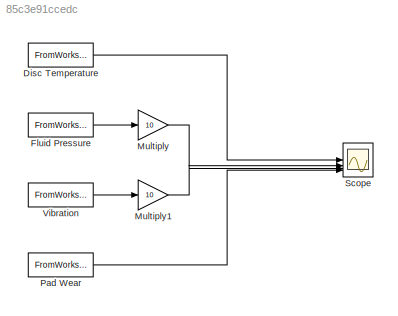
MODEL slx_85c3e91ccedc
KIND model
CONFIG AbsTol = auto
CONFIG EnableMultiTasking = off
CONFIG FixedStep = auto
CONFIG MaxStep = auto
CONFIG MinStep = auto
CONFIG RelTol = 1e-3
CONFIG SampleTimeConstraint = Unconstrained
CONFIG SolverName = VariableStepAuto
CONFIG StartTime = 0.0
CONFIG StopTime = 10.0
BLOCK [FromWorkspace] Disc Temperature
  VariableName = [t' disc_temp']
BLOCK [FromWorkspace] Fluid Pressure
  VariableName = [t' pressure']
BLOCK [Gain] Multiply
  Gain = 10
BLOCK [Gain] Multiply1
  Gain = 10
BLOCK [FromWorkspace] Pad Wear
  VariableName = [t' wear']
BLOCK [Scope] Scope
  Floating = off
  NumInputPorts = 4
  ScopeSpecificationString = Simulink.scopes.TimeScopeBlockCfg('CurrentConfiguration', extmgr.ConfigurationSet(extmgr.Configuration('Core','General UI',true),extmgr.Configuration('Core','Source UI',true),extmgr.Configuration('Sources','WiredSimulink',true),extmgr.Configuration('Visuals','Time Domain',true,'SerializedDisplays',{struct('MinYLimReal','-22.37208','MaxYLimReal','202.48579','YLabelReal','','MinYLimMag','0.00000','M...<+1495ch>
BLOCK [FromWorkspace] Vibration
  VariableName = [t' vibration']
LINE Disc Temperature:1 -> Scope:1
LINE Fluid Pressure:1 -> Multiply:1
LINE Multiply1:1 -> Scope:3
LINE Multiply:1 -> Scope:2
LINE Pad Wear:1 -> Scope:4
LINE Vibration:1 -> Multiply1:1
